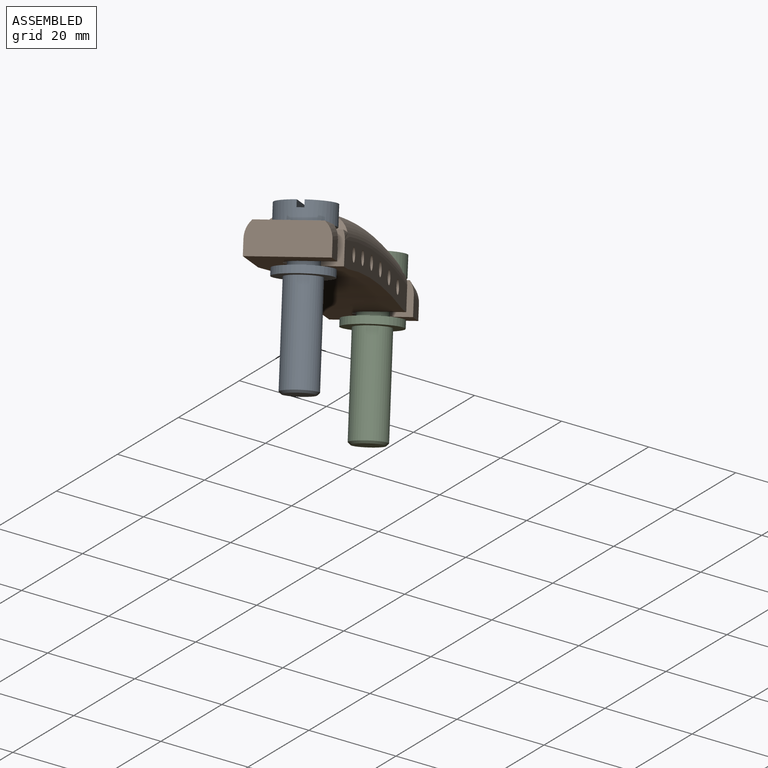
[diagram: assembled view]
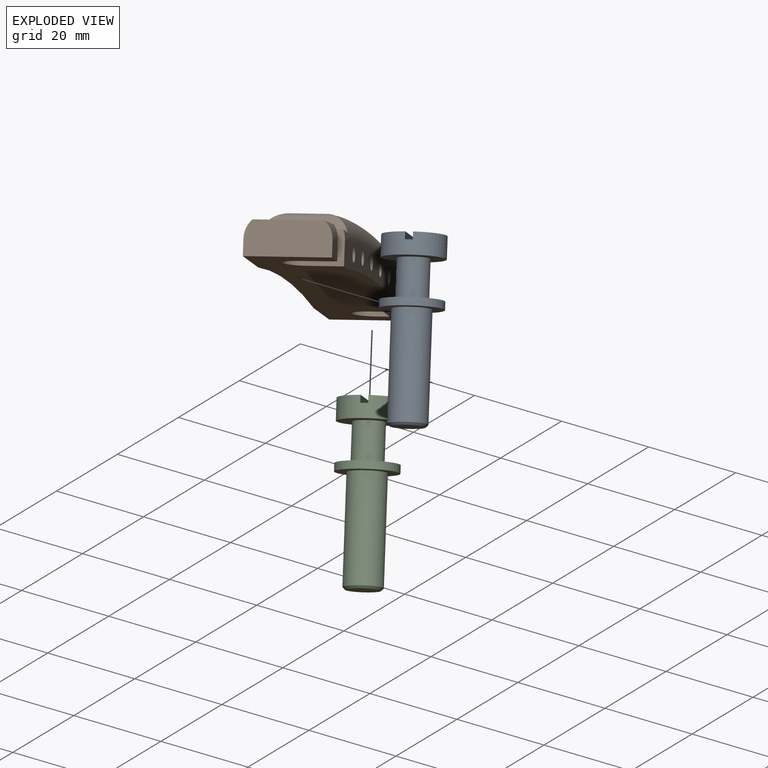
[diagram: exploded view]
GUIDED TOUR — MATED ASSEMBLY (Onshape document fb40458a8e67e77b70118024, AutoMate assembly fb40458a8e67e77b70118024_83d14cbe5c2bbadbdae3085f_678eed1539e474b25c080bac_default)

This assembly has 3 components, labeled P0..P2 below (a component is one placed occurrence of a part; the same part can appear more than once), held together by 1 mate. A mate is a constraint between two components; its type names the relative motion it leaves free:
  FASTENED — locks the two components together rigidly (no relative motion).
Axis/direction vectors are unit vectors and 'through' points are millimeter coordinates, both in the assembly's world frame.

MATES
  1. FASTENED "Fest 6": P1 <-> P2, direction (-0.271, 0.448, 0.852) through (641.17, 796.91, -338.65) mm

ASSEMBLY ORDER
  1. P1 — the base component [order heuristic]
  2. P0 [order heuristic]
  3. P2 [order heuristic]
Order-tag legend:
  [order heuristic] — this assembly is geometrically interlocked (no collision-free removal order exists), so components are listed in mate-graph order; insertion feasibility is not verified.

Of the 3 components, 1 carries the full construction recipe — the FeatureScript program that regenerates the part's solid from scratch; the rest are supplied as boundary geometry only.
Each toured component is shown spotlighted twice — in the assembled view, then in the exploded view, where a leader line traces a displaced component back to its assembled socket (saturated green if recipe-attached, orange if geometry-only; every other component desaturated gray) — followed by its recipe or geometry summary and the mates that hold it.
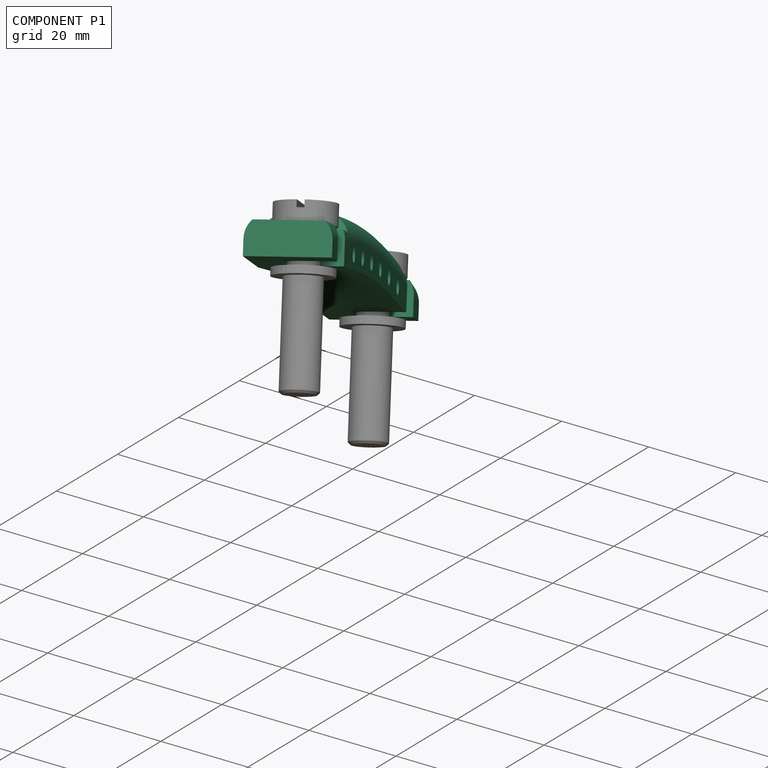
[diagram: component P1 — assembled]
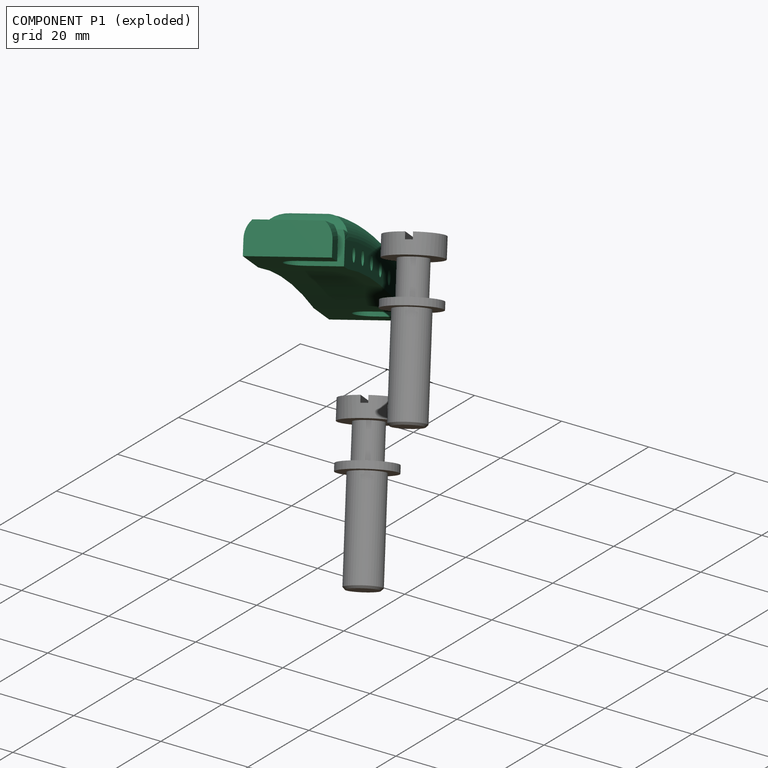
[diagram: component P1 — exploded]
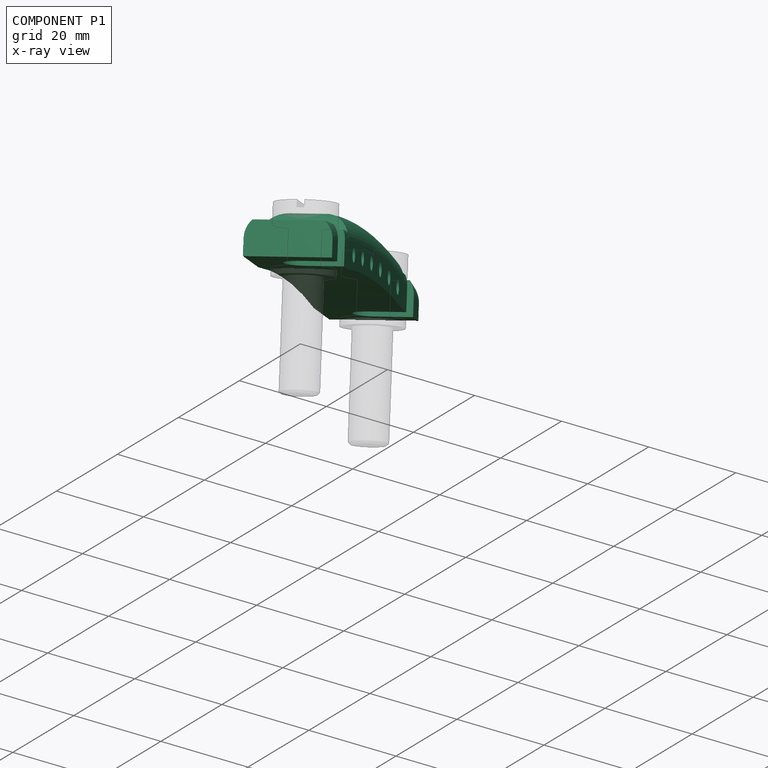
[diagram: component P1 — x-ray view]
COMPONENT P1 — recipe-attached (CADFS 00795855, mesh-verified: the recipe's output STEP matches this component's geometry to below the mesh-comparison resolution (tessellation chordal tolerance ~0.155 mm)).
Held by: FASTENED mate "Fest 6" to P2.
Construction recipe (FeatureScript — the CAD program that rebuilds this solid; sketch coordinates are in the units given by the * unit suffixes, e.g. mm):

FeatureScript 1511;
import(path : "onshape/std/geometry.fs", version : "1511.0");
import(path : "onshape/std/common.fs", version : "1511.0");
const mm = millimeter;
const VERTEX = EntityType.VERTEX;
const EDGE = EntityType.EDGE;
const FACE = EntityType.FACE;
const BODY = EntityType.BODY;
function v(x, y){return vector(x, y);}
function OD(order){return orderDisambiguation(order);}
function OSD(set){return originalSetDisambiguation(set);}
function TD(topology){return topologyDisambiguation(topology);}
function TDD(query){return trueDependencyDisambiguation(query);}
function sQuery(a, b, c) {return sketchEntityQuery(a, b, c);}

annotation { "Feature Type Name" : "Feature", "Feature Type Description" : "" }
export const myFeature = defineFeature(function(context is Context, id is Id, definition is map)
    precondition{}
    {
        {
            var Q0;
            Q0=qCreatedBy(makeId("Front.planeOp"),FACE);
            var sketch = newSketch(context, id + "F0", { "sketchPlane" : qUnion([Q0])});
            skLineSegment(sketch, "E0", {"start": v(-50.65, 3.5) * mm, "end": v(-50.65, -3.5) * mm});
            skLineSegment(sketch, "E1", {"start": v(-50.65, -3.5) * mm, "end": v(-32.5, -3.5) * mm});
            skLineSegment(sketch, "E2", {"start": v(-50.65, 3.5) * mm, "end": v(-32.5, 3.5) * mm});
            skLineSegment(sketch, "E3", {"start": v(32.5, 3.5) * mm, "end": v(50.65, 3.5) * mm});
            skLineSegment(sketch, "E4", {"start": v(50.65, 3.5) * mm, "end": v(50.65, -3.5) * mm});
            skLineSegment(sketch, "E5", {"start": v(50.65, -3.5) * mm, "end": v(32.5, -3.5) * mm});
            skArc(sketch, "E6", {"start": v(-32.5, -3.5) * mm, "mid": v(0, -2.01) * mm, "end": v(32.5, -3.5) * mm});
            skArc(sketch, "E7", {"start": v(-32.5, 3.5) * mm, "mid": v(0, 4.99) * mm, "end": v(32.5, 3.5) * mm, "construction": true});
            skArc(sketch, "E8", {"start": v(-25.75, 0) * mm, "mid": v(0, 0.93) * mm, "end": v(25.75, 0) * mm, "construction": true});
            skCircle(sketch, "E9", {"center": v(-25.75, 0) * mm, "radius": 1.5 * mm});
            skCircle(sketch, "E10", {"center": v(-15.45, 0.6) * mm, "radius": 1.5 * mm});
            skCircle(sketch, "E11", {"center": v(-5.15, 0.9) * mm, "radius": 1.5 * mm});
            skCircle(sketch, "E12", {"center": v(5.15, 0.9) * mm, "radius": 1.5 * mm});
            skCircle(sketch, "E13", {"center": v(15.45, 0.6) * mm, "radius": 1.5 * mm});
            skCircle(sketch, "E14", {"center": v(25.75, 0) * mm, "radius": 1.5 * mm});
            skArc(sketch, "E15", {"start": v(-32.5, 7) * mm, "mid": v(0, 8.49) * mm, "end": v(32.5, 7) * mm});
            skLineSegment(sketch, "E16", {"start": v(32.5, 3.5) * mm, "end": v(32.5, 7) * mm});
            skLineSegment(sketch, "E17", {"start": v(-32.5, 3.5) * mm, "end": v(-32.5, 7) * mm});
            skSolve(sketch);
        }
        {
            var Q0;
            Q0 = qSketchRegion(id + "F0", true);
            extrude(context, id + "F1", {"entities" : qUnion([Q0]), "depth" : 17 * mm, "offsetDistance" : 25 * mm});
        }
        {
            var Q0;
            Q0=makeQuery(id+"F1.opExtrude","SWEPT_FACE",FACE,{"disambiguationData":[OSD([sQuery(id+"F0.wireOp",EDGE,"E15")])]});
            fillet(context, id + "F2", {"entities" : qUnion([Q0]), "radius" : 5 * mm, "tangentPropagation" : true, "allowEdgeOverflow" : false});
        }
        {
            var Q0;
            Q0=qCreatedBy(makeId("Top.planeOp"),FACE);
            var sketch = newSketch(context, id + "F3", { "sketchPlane" : qUnion([Q0])});
            skCircle(sketch, "E18", {"center": v(40.5, -7) * mm, "radius": 4 * mm});
            skCircle(sketch, "E19", {"center": v(-40.5, -7) * mm, "radius": 4 * mm});
            skLineSegment(sketch, "E20", {"start": v(-44.5, -7) * mm, "end": v(-44.5, 0) * mm});
            skLineSegment(sketch, "E21", {"start": v(-44.5, 0) * mm, "end": v(-36.5, 0) * mm});
            skLineSegment(sketch, "E22", {"start": v(-36.5, 0) * mm, "end": v(-36.5, -7) * mm});
            skLineSegment(sketch, "E23", {"start": v(36.5, -7) * mm, "end": v(36.5, 0) * mm});
            skLineSegment(sketch, "E24", {"start": v(36.5, 0) * mm, "end": v(44.5, 0) * mm});
            skLineSegment(sketch, "E25", {"start": v(44.5, 0) * mm, "end": v(44.5, -7) * mm});
            skSolve(sketch);
        }
        {
            var Q0;
            Q0 = qSketchRegion(id + "F3", true);
            extrude(context, id + "F4", {"entities" : qUnion([Q0]), "operationType" : NewBodyOperationType.REMOVE, "endBound" : BoundingType.SYMMETRIC, "oppositeDirection" : true, "depth" : 25 * mm, "offsetDistance" : 25 * mm});
        }
        {
            var Q0;
            Q0=makeQuery(id+"F1.opExtrude","CAP_FACE",FACE,{"disambiguationData":[OSD([sQuery(id+"F0.wireOp",EDGE,"E0"),sQuery(id+"F0.wireOp",EDGE,"E1"),sQuery(id+"F0.wireOp",EDGE,"E2"),sQuery(id+"F0.wireOp",EDGE,"E3"),sQuery(id+"F0.wireOp",EDGE,"E4"),sQuery(id+"F0.wireOp",EDGE,"E5"),sQuery(id+"F0.wireOp",EDGE,"E6"),sQuery(id+"F0.wireOp",EDGE,"E9"),sQuery(id+"F0.wireOp",EDGE,"E10"),sQuery(id+"F0.wireOp",EDGE,"E11"),sQuery(id+"F0.wireOp",EDGE,"E12"),sQuery(id+"F0.wireOp",EDGE,"E13"),sQuery(id+"F0.wireOp",EDGE,"E14"),sQuery(id+"F0.wireOp",EDGE,"E15"),sQuery(id+"F0.wireOp",EDGE,"E16"),sQuery(id+"F0.wireOp",EDGE,"E17")])],"isStart":false});
            var sketch = newSketch(context, id + "F5", { "sketchPlane" : qUnion([Q0])});
            skCircle(sketch, "E26", {"center": v(-25.75, 0) * mm, "radius": 2.55 * mm});
            skCircle(sketch, "E27", {"center": v(-15.45, 0.6) * mm, "radius": 2.55 * mm});
            skCircle(sketch, "E28", {"center": v(-5.15, 0.9) * mm, "radius": 2.55 * mm});
            skCircle(sketch, "E29", {"center": v(5.15, 0.9) * mm, "radius": 2.55 * mm});
            skCircle(sketch, "E30", {"center": v(15.45, 0.6) * mm, "radius": 2.55 * mm});
            skCircle(sketch, "E31", {"center": v(25.75, 0) * mm, "radius": 2.55 * mm});
            skSolve(sketch);
        }
        {
            var Q0;
            Q0 = qSketchRegion(id + "F5", true);
            extrude(context, id + "F6", {"entities" : qUnion([Q0]), "operationType" : NewBodyOperationType.REMOVE, "oppositeDirection" : true, "depth" : 5 * mm, "offsetDistance" : 25 * mm});
        }
    });
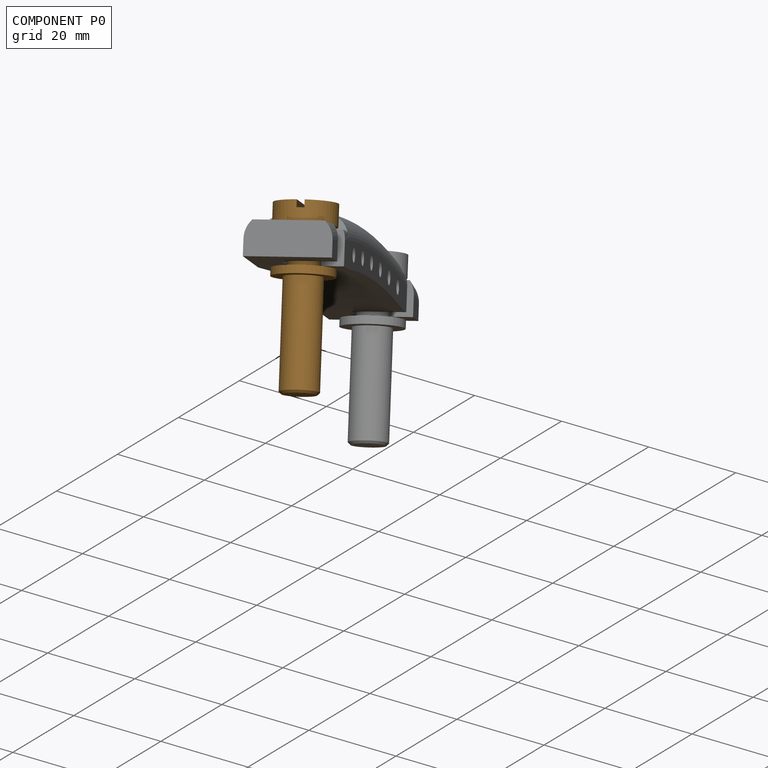
[diagram: component P0 — assembled]
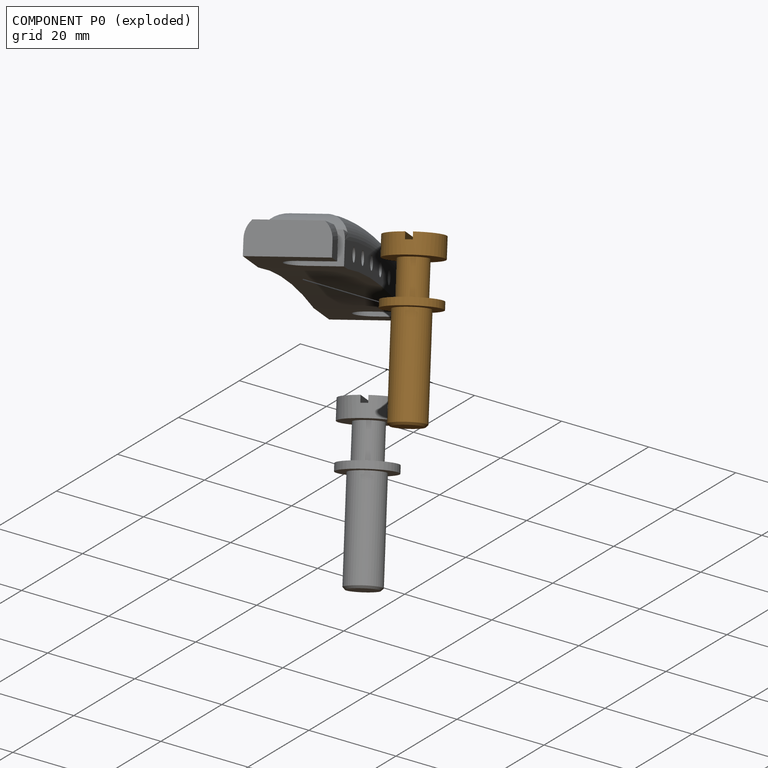
[diagram: component P0 — exploded]
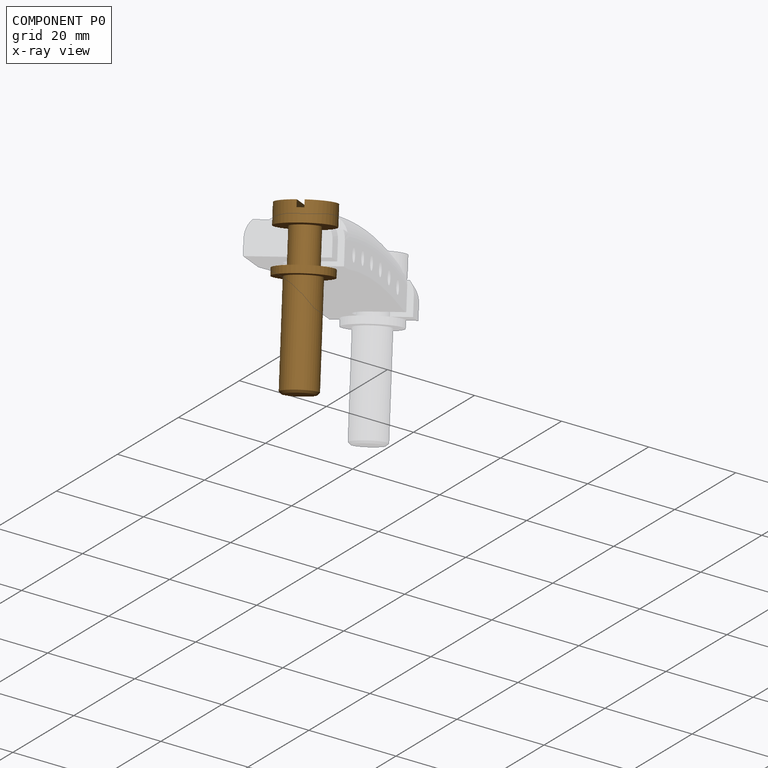
[diagram: component P0 — x-ray view]
COMPONENT P0 — geometry summary (no construction recipe available for this part):
  bounding box: 36.3 x 12.5 x 12.5 mm
  B-rep topology: 1 solid, 14 faces, 52 edges
  volume: 2028 mm^3 (36% of its bounding box)
  symmetry: 2-fold rotationally symmetric about the z axis; mirror-symmetric across its x mid-plane, y mid-plane
Held by: no mates (free).
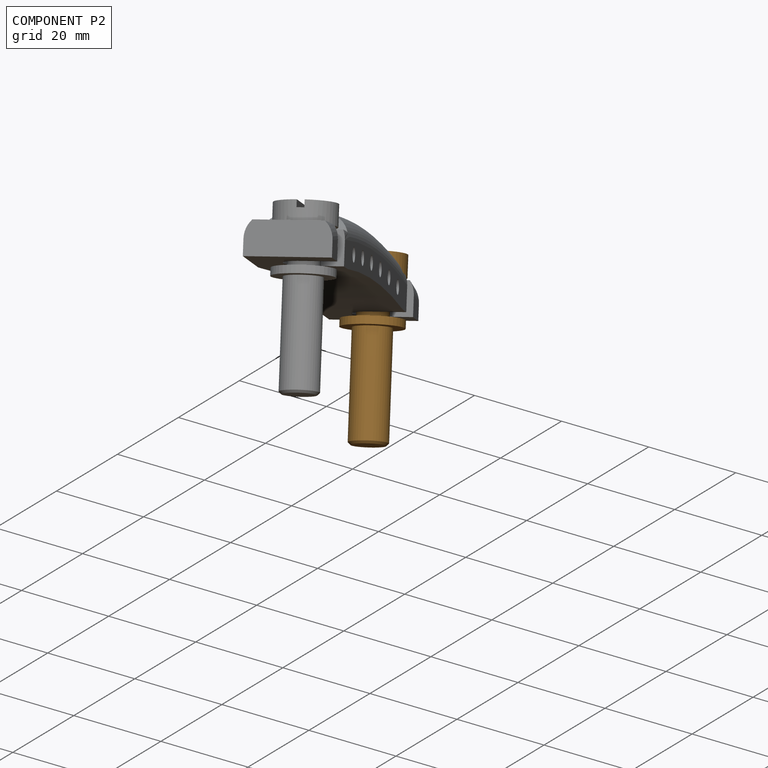
[diagram: component P2 — assembled]
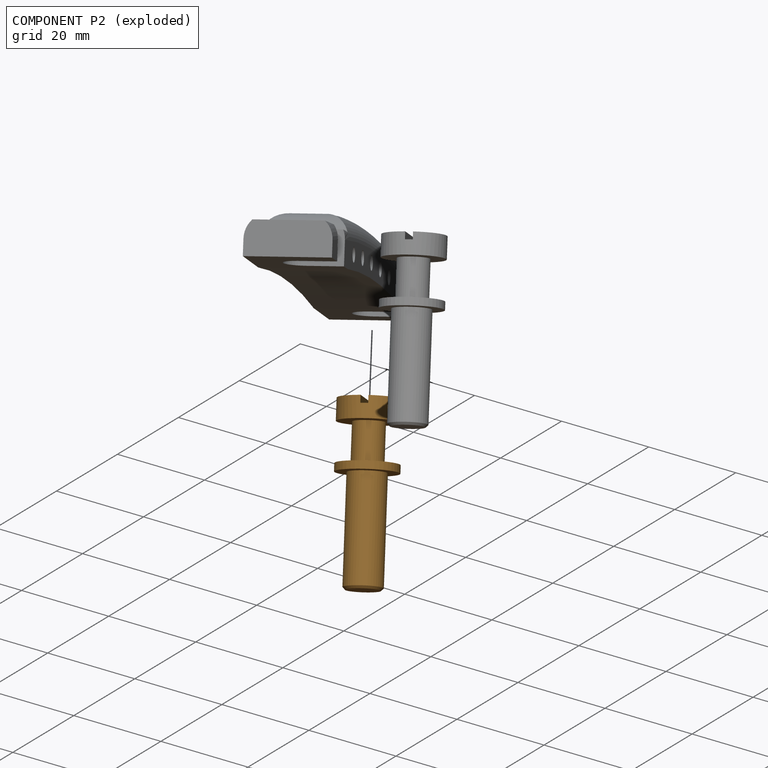
[diagram: component P2 — exploded]
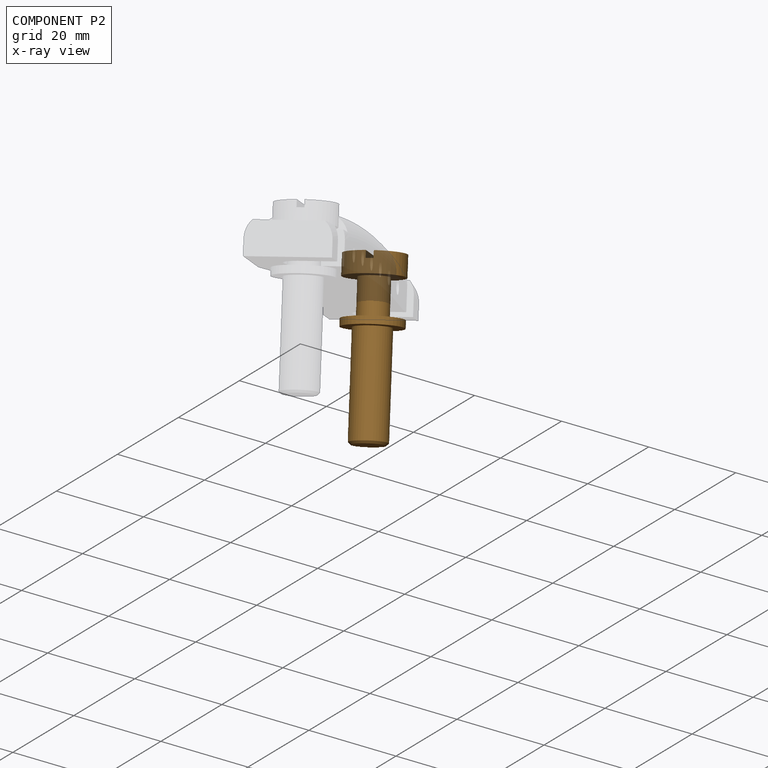
[diagram: component P2 — x-ray view]
COMPONENT P2 — geometry summary (no construction recipe available for this part):
  bounding box: 36.3 x 12.5 x 12.5 mm
  B-rep topology: 1 solid, 14 faces, 52 edges
  volume: 2028 mm^3 (36% of its bounding box)
  symmetry: 2-fold rotationally symmetric about the z axis; mirror-symmetric across its x mid-plane, y mid-plane
Held by: FASTENED mate "Fest 6" to P1.
PROVENANCE & LICENSES
Assembly (occurrences, transforms, mates, per-part STEP geometry): AutoMate dataset, Zenodo record 7776208, CC0.
Construction recipes: CADFS (HuggingFace VladPyatov/CADFS, CC-BY-4.0, layered over the ABC dataset), FeatureScript reconstruction programs keyed by ABC model id.
Join: ABC meta listings map ABC model id -> Onshape documentId; within a shared document, parts are matched by geometric signature (bounding-box dims + volume at 0.1% relative tolerance, exact B-rep face/solid counts).
Verification: 1 of this assembly's 3 components carries a recipe attachment, and every attachment is mesh-verified: the CADFS STEP and the AutoMate member STEP were compared as meshes in their shared local frame (symmetric sampled-point-to-mesh distance); worst across the 1 attachment: below the mesh-comparison resolution (tessellation chordal tolerance ~0.155 mm) on a 103 mm part.
Renders: orthographic iso camera (az 35 / el 25); the floor grid conveys scale (grid pitch printed in each image; no ruler). In the exploded view each component is displaced by its stored offset vector: the offsets alone carry the explosion direction (mate normal/axis signs are not orientation cues and do not encode it), and separation distances are assigned per mate-chain, not proportionally to assembly-order depth.
